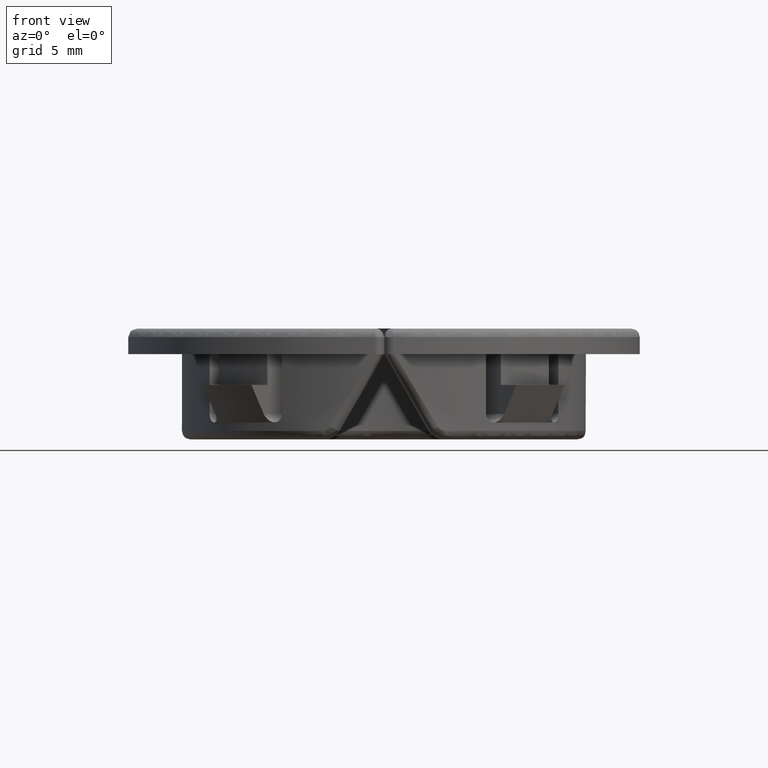
[diagram: clean part render]
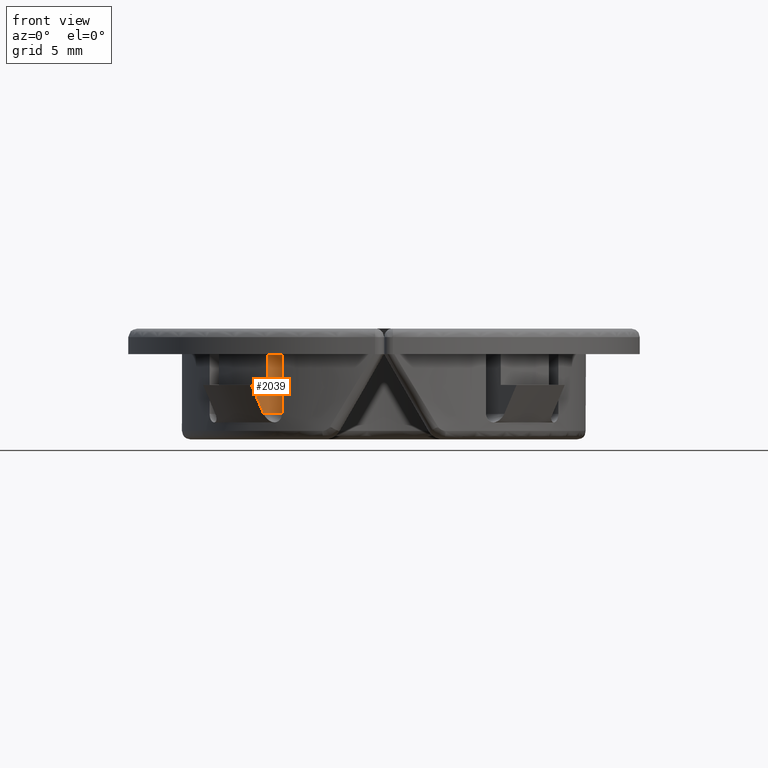
[diagram: same view with one face highlighted and labeled with its STEP entity id]
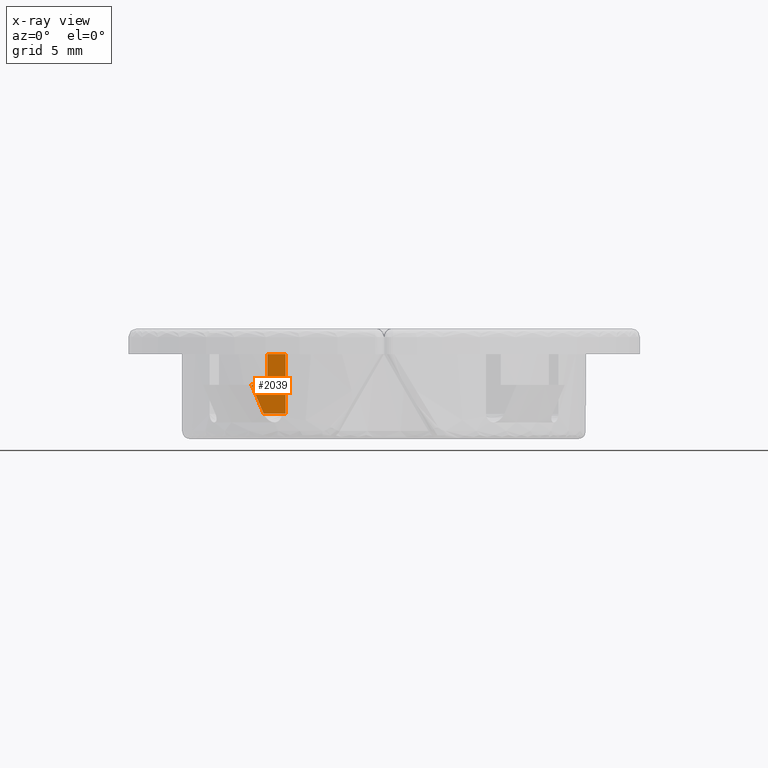
[diagram: x-ray of the same camera — body ghosted, the highlighted face saturated]
A machine part, front view. The second image highlights one B-rep face of the part: STEP entity #2039.
The next image is the same camera in x-ray: the body ghosted, the highlighted face saturated — about 0% of this face is hidden behind the body in this view.
In plain terms, the highlighted face is a freeform B-spline surface patch.
Its self-contained STEP definition (entity closure, byte-faithful):
#934=CARTESIAN_POINT('',(-7.056679723337400,-9.885106848083201,1.500000000005690));
#935=VERTEX_POINT('',#934);
#936=CARTESIAN_POINT('',(-5.766402706443961,-8.594829831190220,1.499999999999946));
#937=VERTEX_POINT('',#936);
#938=CARTESIAN_POINT('',(-7.056679723337400,-9.885106848083201,1.500000000005690));
#939=CARTESIAN_POINT('',(-5.766402706443961,-8.594829831190220,1.499999999999946));
#940=QUASI_UNIFORM_CURVE('',1,(#938,#939),.UNSPECIFIED.,.F.,.U.);
#941=EDGE_CURVE('',#935,#937,#940,.T.);
#1464=CARTESIAN_POINT('',(-6.844796668883270,-9.673223793629589,4.999999999999901));
#1465=VERTEX_POINT('',#1464);
#1479=CARTESIAN_POINT('',(-5.766402706443961,-8.594829831190220,4.999999999999890));
#1480=VERTEX_POINT('',#1479);
#1481=CARTESIAN_POINT('',(-5.766402706443961,-8.594829831190220,4.999999999999890));
#1482=CARTESIAN_POINT('',(-6.844796668883270,-9.673223793629589,4.999999999999901));
#1483=QUASI_UNIFORM_CURVE('',1,(#1481,#1482),.UNSPECIFIED.,.F.,.U.);
#1484=EDGE_CURVE('',#1480,#1465,#1483,.T.);
#2004=CARTESIAN_POINT('',(-7.876449609562291,-10.704876734308080,1.325175006783628));
#2005=CARTESIAN_POINT('',(-5.666019780006062,-8.494446904751849,1.325175006783628));
#2006=CARTESIAN_POINT('',(-7.876449609562291,-10.704876734308080,5.174825087093535));
#2007=CARTESIAN_POINT('',(-5.666019780006062,-8.494446904751849,5.174825087093535));
#2008=B_SPLINE_SURFACE_WITH_KNOTS('',1,1,((#2004,#2006),(#2005,#2007)),.UNSPECIFIED.,.F.,.F.,.U.,(2,2),(2,2),(0.0,3.126019843632469),(0.0,3.849650080309908),.UNSPECIFIED.);
#2009=CARTESIAN_POINT('',(-7.776066629220770,-10.604493753966560,3.199999999999905));
#2010=VERTEX_POINT('',#2009);
#2011=CARTESIAN_POINT('',(-7.056679723337407,-9.885106848083195,1.500000000005689));
#2012=CARTESIAN_POINT('',(-7.296663064754874,-10.125090189500661,2.066507752964915));
#2013=CARTESIAN_POINT('',(-7.536444100281068,-10.364871225026860,2.633186779925827));
#2014=CARTESIAN_POINT('',(-7.776066629220771,-10.604493753966560,3.199999999999905));
#2015=QUASI_UNIFORM_CURVE('',3,(#2011,#2012,#2013,#2014),.UNSPECIFIED.,.F.,.U.);
#2016=EDGE_CURVE('',#935,#2010,#2015,.T.);
#2017=ORIENTED_EDGE('',*,*,#2016,.F.);
#2018=ORIENTED_EDGE('',*,*,#941,.T.);
#2019=CARTESIAN_POINT('',(-5.766402706443961,-8.594829831190220,1.499999999999946));
#2020=CARTESIAN_POINT('',(-5.766402706443961,-8.594829831190220,4.999999999999890));
#2021=QUASI_UNIFORM_CURVE('',1,(#2019,#2020),.UNSPECIFIED.,.F.,.U.);
#2022=EDGE_CURVE('',#937,#1480,#2021,.T.);
#2023=ORIENTED_EDGE('',*,*,#2022,.T.);
#2024=ORIENTED_EDGE('',*,*,#1484,.T.);
#2025=CARTESIAN_POINT('',(-6.844796668883270,-9.673223793629589,3.199999999999885));
#2026=VERTEX_POINT('',#2025);
#2027=CARTESIAN_POINT('',(-6.844796668883270,-9.673223793629589,3.199999999999885));
#2028=CARTESIAN_POINT('',(-6.844796668883270,-9.673223793629589,4.999999999999901));
#2029=QUASI_UNIFORM_CURVE('',1,(#2027,#2028),.UNSPECIFIED.,.F.,.U.);
#2030=EDGE_CURVE('',#2026,#1465,#2029,.T.);
#2031=ORIENTED_EDGE('',*,*,#2030,.F.);
#2032=CARTESIAN_POINT('',(-7.776066629220770,-10.604493753966560,3.199999999999905));
#2033=CARTESIAN_POINT('',(-6.844796668883270,-9.673223793629589,3.199999999999885));
#2034=QUASI_UNIFORM_CURVE('',1,(#2032,#2033),.UNSPECIFIED.,.F.,.U.);
#2035=EDGE_CURVE('',#2010,#2026,#2034,.T.);
#2036=ORIENTED_EDGE('',*,*,#2035,.F.);
#2037=EDGE_LOOP('',(#2017,#2018,#2023,#2024,#2031,#2036));
#2038=FACE_OUTER_BOUND('',#2037,.T.);
#2039=ADVANCED_FACE('',(#2038),#2008,.T.);